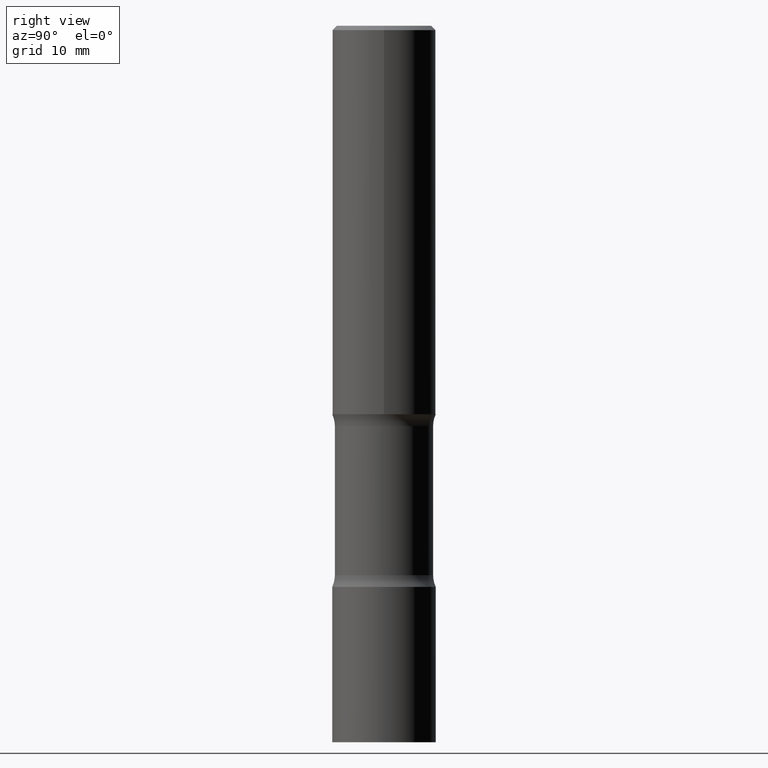
[diagram: clean part render]
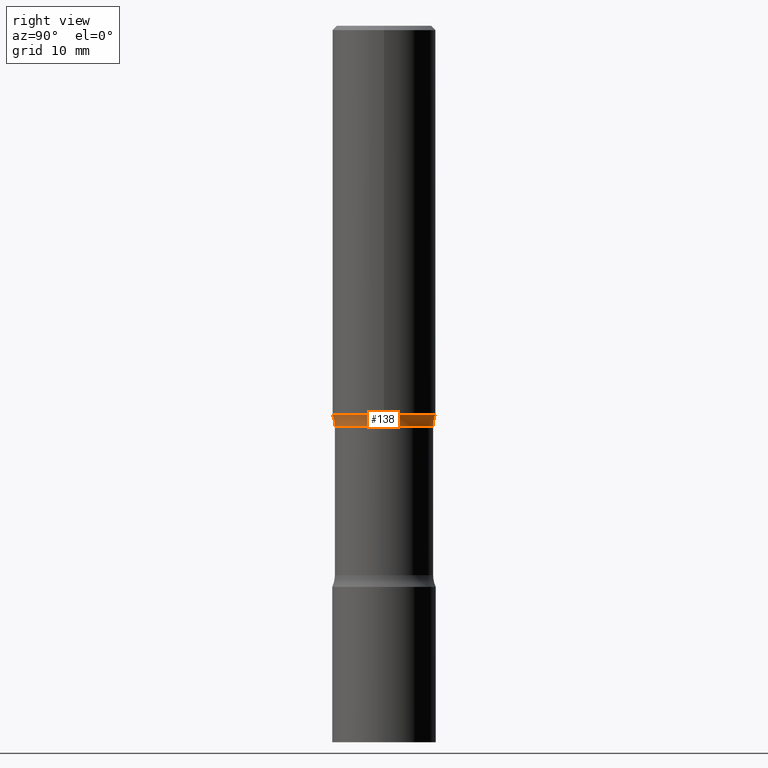
[diagram: same view with one face highlighted and labeled with its STEP entity id]
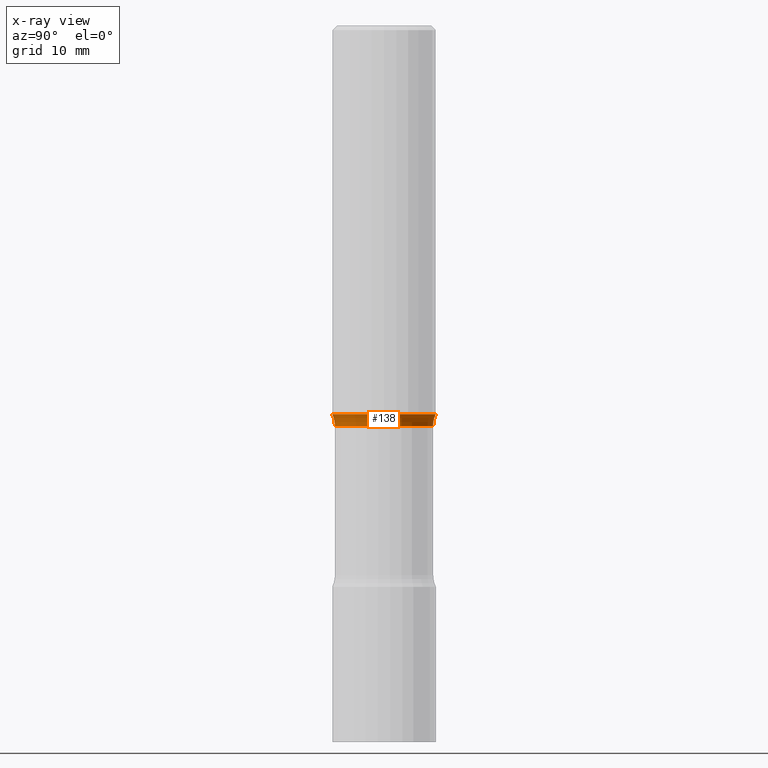
[diagram: x-ray of the same camera — body ghosted, the highlighted face saturated]
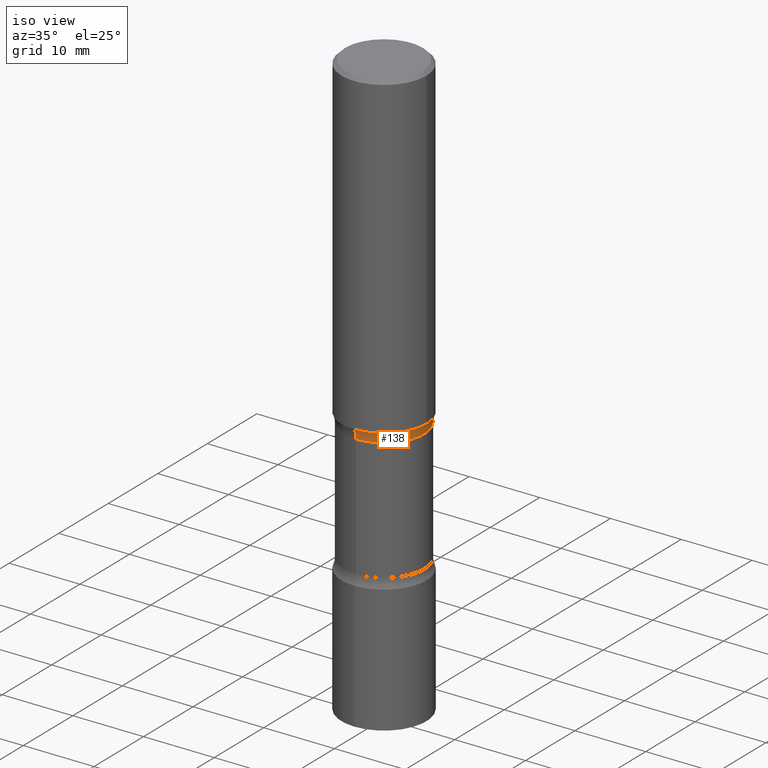
[diagram: same view with one face highlighted and labeled with its STEP entity id]
A machine part, right view. The second image highlights one B-rep face of the part: STEP entity #138.
The next image is the same camera in x-ray: the body ghosted, the highlighted face saturated — about 0% of this face is hidden behind the body in this view.
A second angle (iso view) of the same face is appended — the face is thin or edge-on in the first view.
In plain terms, the highlighted toroidal blend (fillet) surface has major radius 8.8646 mm and minor (blend) radius 3.175 mm.
Its self-contained STEP definition (entity closure, byte-faithful):
#81 = ORIENTED_EDGE ( 'NONE', *, *, #222, .F. ) ;
#94 = ORIENTED_EDGE ( 'NONE', *, *, #268, .F. ) ;
#96 = DIRECTION ( 'NONE',  ( 6.982962677686265133E-15, 1.000000000000000000, -3.472816672154183992E-15 ) ) ;
#113 = DIRECTION ( 'NONE',  ( 6.982962677686266711E-15, 1.000000000000000000, -3.658724991514638486E-15 ) ) ;
#138 = ADVANCED_FACE ( 'NONE', ( #296 ), #263, .F. ) ;
#157 = CIRCLE ( 'NONE', #487, 0.2362000000000000210 ) ;
#176 = DIRECTION ( 'NONE',  ( 2.458502273273184055E-29, -3.472816672154183992E-15, -1.000000000000000000 ) ) ;
#179 = CARTESIAN_POINT ( 'NONE',  ( -1.578600589287185035E-15, -0.2240000000000063607, -1.825462417324140496 ) ) ;
#181 = CIRCLE ( 'NONE', #284, 0.1249999999999999584 ) ;
#192 = ORIENTED_EDGE ( 'NONE', *, *, #424, .T. ) ;
#193 = DIRECTION ( 'NONE',  ( 2.458502273273184055E-29, -3.472816672154183992E-15, -1.000000000000000000 ) ) ;
#209 = EDGE_LOOP ( 'NONE', ( #81, #94, #471, #192 ) ) ;
#218 = DIRECTION ( 'NONE',  ( 6.860497997771529985E-15, 1.000000000000000000, 0.000000000000000000 ) ) ;
#222 = EDGE_CURVE ( 'NONE', #239, #243, #446, .T. ) ;
#239 = VERTEX_POINT ( 'NONE', #179 ) ;
#243 = VERTEX_POINT ( 'NONE', #264 ) ;
#263 = TOROIDAL_SURFACE ( 'NONE', #432, 0.3489999999999999769, 0.1249999999999999445 ) ;
#264 = CARTESIAN_POINT ( 'NONE',  ( -1.620449627073592086E-15, -0.2362000000000061828, -1.771599999999998953 ) ) ;
#268 = EDGE_CURVE ( 'NONE', #312, #239, #317, .T. ) ;
#284 = AXIS2_PLACEMENT_3D ( 'NONE', #381, #321, #357 ) ;
#293 = VERTEX_POINT ( 'NONE', #392 ) ;
#296 = FACE_OUTER_BOUND ( 'NONE', #209, .T. ) ;
#309 = CARTESIAN_POINT ( 'NONE',  ( 1.564183639801767975E-15, 0.2239999999999935931, -1.825462417324142050 ) ) ;
#311 = DIRECTION ( 'NONE',  ( 2.458502273273184055E-29, -3.472816672154183992E-15, -1.000000000000000000 ) ) ;
#312 = VERTEX_POINT ( 'NONE', #309 ) ;
#317 = CIRCLE ( 'NONE', #410, 0.2239999999999999769 ) ;
#321 = DIRECTION ( 'NONE',  ( -1.000000000000000000, 6.982962677686265922E-15, -4.883557194083112901E-29 ) ) ;
#334 = DIRECTION ( 'NONE',  ( 6.982962677686265922E-15, 1.000000000000000000, -3.469747663417777002E-15 ) ) ;
#345 = DIRECTION ( 'NONE',  ( 1.000000000000000000, -6.860497997771530774E-15, 4.841027455867320914E-29 ) ) ;
#356 = AXIS2_PLACEMENT_3D ( 'NONE', #417, #345, #218 ) ;
#357 = DIRECTION ( 'NONE',  ( -6.982962677686265133E-15, -1.000000000000000000, 0.000000000000000000 ) ) ;
#358 = EDGE_CURVE ( 'NONE', #312, #293, #181, .T. ) ;
#381 = CARTESIAN_POINT ( 'NONE',  ( 2.437053974512551116E-15, 0.3489999999999935931, -1.825462417324142494 ) ) ;
#392 = CARTESIAN_POINT ( 'NONE',  ( 1.649375784469538926E-15, 0.2361999999999937760, -1.771600000000000508 ) ) ;
#410 = AXIS2_PLACEMENT_3D ( 'NONE', #466, #311, #113 ) ;
#417 = CARTESIAN_POINT ( 'NONE',  ( -2.394313801222219430E-15, -0.3490000000000063052, -1.825462417324140274 ) ) ;
#424 = EDGE_CURVE ( 'NONE', #293, #243, #157, .T. ) ;
#432 = AXIS2_PLACEMENT_3D ( 'NONE', #497, #176, #96 ) ;
#438 = CARTESIAN_POINT ( 'NONE',  ( 4.315944700400087943E-29, -6.209062578112139389E-15, -1.771599999999999842 ) ) ;
#446 = CIRCLE ( 'NONE', #356, 0.1249999999999999584 ) ;
#466 = CARTESIAN_POINT ( 'NONE',  ( 4.448365575835479275E-29, -6.396116878997944759E-15, -1.825462417324141384 ) ) ;
#471 = ORIENTED_EDGE ( 'NONE', *, *, #358, .T. ) ;
#487 = AXIS2_PLACEMENT_3D ( 'NONE', #438, #193, #334 ) ;
#497 = CARTESIAN_POINT ( 'NONE',  ( 4.464111398429501786E-29, -6.373567964846738051E-15, -1.825462417324141384 ) ) ;